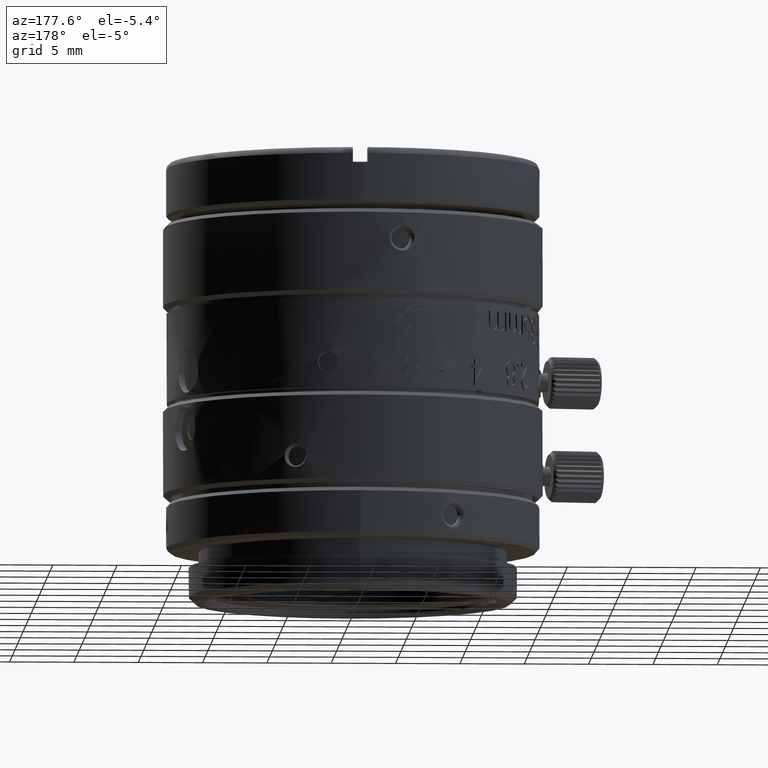
[diagram: clean part render]
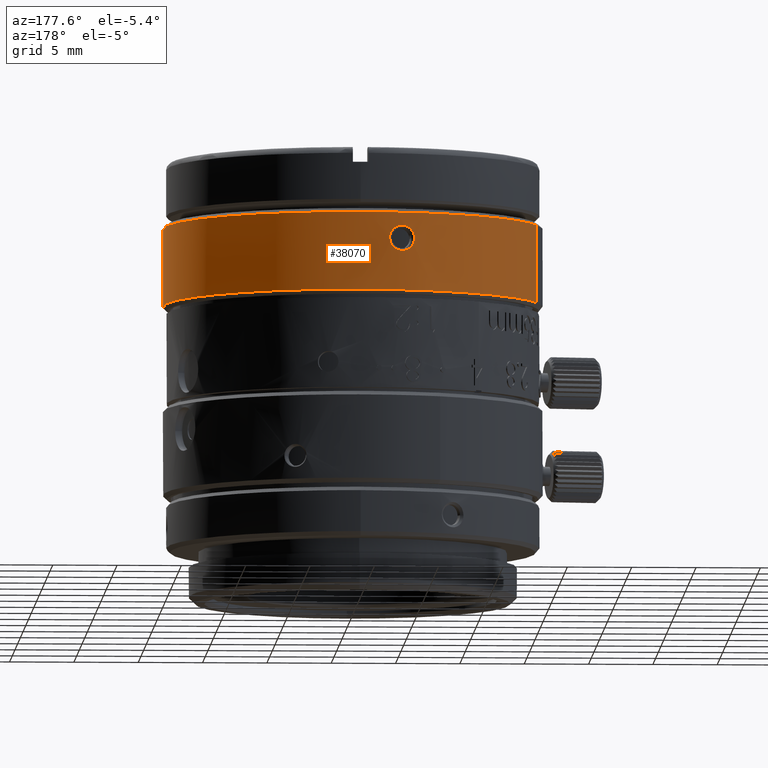
[diagram: same view with one face highlighted and labeled with its STEP entity id]
A machine part, auxiliary view. The second image highlights one B-rep face of the part: STEP entity #38070.
In plain terms, the highlighted face is a freeform B-spline surface patch.
Its self-contained STEP definition (entity closure, byte-faithful):
#114 = CARTESIAN_POINT ( 'NONE',  ( -14.08183630799999975, 4.389121345000000396, 22.93932818800000106 ) ) ;
#202 = CARTESIAN_POINT ( 'NONE',  ( -2.570197933999999851, 14.52436276200000087, 20.21917206399999856 ) ) ;
#331 = CARTESIAN_POINT ( 'NONE',  ( -3.398307082999999729, 14.35319725399999946, 21.91251660100000009 ) ) ;
#412 = CARTESIAN_POINT ( 'NONE',  ( -2.851029207999999926, 14.47184708600000036, 20.03443372599999961 ) ) ;
#543 = CARTESIAN_POINT ( 'NONE',  ( -2.709517937999999848, 14.49900683899999976, 21.76812163799999666 ) ) ;
#630 = CARTESIAN_POINT ( 'NONE',  ( -2.433643215000000026, 14.54785080399999941, 20.37832729600000192 ) ) ;
#760 = CARTESIAN_POINT ( 'NONE',  ( -2.346564987000000269, 14.56214893099999941, 21.34668329800000208 ) ) ;
#915 = CARTESIAN_POINT ( 'NONE',  ( 14.08183634890690072, -4.389121213744545003, 19.95309685991425042 ) ) ;
#973 = CARTESIAN_POINT ( 'NONE',  ( -2.836471637000000268, 14.47470708699999875, 21.83772573600000300 ) ) ;
#1048 = CARTESIAN_POINT ( 'NONE',  ( -4.144830634999999930, 14.15566703899999901, 20.59159316899999936 ) ) ;
#1252 = CARTESIAN_POINT ( 'NONE',  ( -3.302916863000000092, 14.37544805399999959, 19.95503774899999883 ) ) ;
#1317 = CARTESIAN_POINT ( 'NONE',  ( 14.14793252700000004, -4.171274130000000468, 19.97854098899999897 ) ) ;
#1449 = CARTESIAN_POINT ( 'NONE',  ( -3.866337477000000078, 14.23425774400000066, 20.18672398000000001 ) ) ;
#1513 = CARTESIAN_POINT ( 'NONE',  ( 14.27287170299999985, -3.721258654999999749, 21.64801024300000165 ) ) ;
#1649 = CARTESIAN_POINT ( 'NONE',  ( -3.935679779999999628, 14.21524044000000053, 20.25310460400000068 ) ) ;
#1715 = CARTESIAN_POINT ( 'NONE',  ( 14.26380670699999875, -3.755922484000000061, 20.19752373700000092 ) ) ;
#1837 = CARTESIAN_POINT ( 'NONE',  ( -5.303593609823979982, 32.55279394656484016, 22.93932818799985895 ) ) ;
#1867 = CARTESIAN_POINT ( 'NONE',  ( 14.08183632338500146, -4.389121295639520248, 21.92555951927500146 ) ) ;
#1911 = CARTESIAN_POINT ( 'NONE',  ( 14.33761641200000092, -3.463420029999999983, 21.21077085599999990 ) ) ;
#2116 = CARTESIAN_POINT ( 'NONE',  ( 14.32056768600000041, -3.533256376000000198, 21.38997536400000143 ) ) ;
#2324 = CARTESIAN_POINT ( 'NONE',  ( 14.32235281299999841, -3.526011865999999717, 20.50329768700000344 ) ) ;
#2514 = FACE_OUTER_BOUND ( 'NONE', #36351, .T. ) ;
#2534 = CARTESIAN_POINT ( 'NONE',  ( 14.19498609200000061, -4.008129025000000567, 21.84419192200000026 ) ) ;
#2652 = CARTESIAN_POINT ( 'NONE',  ( -3.271102501999999745, 14.38272070500000055, 21.92518291399999697 ) ) ;
#2865 = CARTESIAN_POINT ( 'NONE',  ( -3.551718284999999753, 14.31600616500000100, 21.87349688899999833 ) ) ;
#2940 = CARTESIAN_POINT ( 'NONE',  ( -2.986673268999999742, 14.44446384699999975, 19.98672393400000047 ) ) ;
#2958 = CARTESIAN_POINT ( 'NONE',  ( 14.26056952999999972, -3.768131928999999936, 21.69137245199999953 ) ) ;
#3067 = CARTESIAN_POINT ( 'NONE',  ( -4.206316112976075772, 14.13751763054776056, 20.93931568342665273 ) ) ;
#3141 = CARTESIAN_POINT ( 'NONE',  ( -2.327612605999999751, 14.56518997299999896, 20.57658971299999706 ) ) ;
#3276 = CARTESIAN_POINT ( 'NONE',  ( -4.160320102000000020, 14.15112218199999994, 21.24146309800000054 ) ) ;
#3354 = CARTESIAN_POINT ( 'NONE',  ( -2.723210993000000357, 14.49644167800000005, 20.10181903400000181 ) ) ;
#3373 = CARTESIAN_POINT ( 'NONE',  ( 14.19903232500000101, -3.993769882000000049, 21.83765505000000218 ) ) ;
#3482 = CARTESIAN_POINT ( 'NONE',  ( -4.206316437999999991, 14.13751753399999878, 20.95551474500000211 ) ) ;
#3557 = CARTESIAN_POINT ( 'NONE',  ( 4.389121342111766744, 14.08183630890022364, 16.88932818800000035 ) ) ;
#3565 = CARTESIAN_POINT ( 'NONE',  ( -2.260095890000000107, 14.57581822299999885, 20.87443584400000063 ) ) ;
#3635 = CARTESIAN_POINT ( 'NONE',  ( 14.18257095999999962, -4.051841096000000420, 20.01628975199999871 ) ) ;
#3700 = CARTESIAN_POINT ( 'NONE',  ( -2.472254137000000185, 14.54133999699999968, 21.55244142100000104 ) ) ;
#3779 = CARTESIAN_POINT ( 'NONE',  ( -2.793245449000000047, 14.48311042500000134, 20.06193569400000243 ) ) ;
#3907 = CARTESIAN_POINT ( 'NONE',  ( -2.570229852999999842, 14.52435711500000082, 21.65951424200000019 ) ) ;
#3989 = CARTESIAN_POINT ( 'NONE',  ( -4.205927945000000001, 14.13763313900000007, 20.90691683600000061 ) ) ;
#4204 = CARTESIAN_POINT ( 'NONE',  ( -3.752264213999999765, 14.26477288200000082, 20.10133357600000181 ) ) ;
#4208 = VERTEX_POINT ( 'NONE', #34985 ) ;
#4260 = ORIENTED_EDGE ( 'NONE', *, *, #37048, .T. ) ;
#4335 = CARTESIAN_POINT ( 'NONE',  ( -2.327621697000000101, 14.56518852099999961, 21.30208970400000013 ) ) ;
#4412 = CARTESIAN_POINT ( 'NONE',  ( -4.107139443000000334, 14.16664941399999833, 20.50242125899999834 ) ) ;
#4480 = CARTESIAN_POINT ( 'NONE',  ( 14.12964949299999873, -4.232702175000000011, 19.96628933400000250 ) ) ;
#4540 = CARTESIAN_POINT ( 'NONE',  ( -2.986690113000000313, 14.44446035900000069, 21.89193691699999889 ) ) ;
#4612 = CARTESIAN_POINT ( 'NONE',  ( -4.203207225999999963, 14.13844233500000058, 20.85832828300000230 ) ) ;
#4679 = CARTESIAN_POINT ( 'NONE',  ( 14.18674687100000043, -4.037194792000000199, 20.02209566499999838 ) ) ;
#4809 = CARTESIAN_POINT ( 'NONE',  ( -3.978125003000000159, 14.20341960899999911, 20.30104707700000333 ) ) ;
#4877 = CARTESIAN_POINT ( 'NONE',  ( 14.19499349300000013, -4.008102831999999616, 20.03447600799999861 ) ) ;
#5080 = CARTESIAN_POINT ( 'NONE',  ( 14.33878577800000009, -3.458585232999999981, 20.68412553900000006 ) ) ;
#5287 = CARTESIAN_POINT ( 'NONE',  ( 14.32232362800000125, -3.526130243999999969, 21.37559491700000081 ) ) ;
#5495 = CARTESIAN_POINT ( 'NONE',  ( 14.31491899799999956, -3.556074433999999673, 21.43250854599999755 ) ) ;
#5698 = CARTESIAN_POINT ( 'NONE',  ( 14.16965361799999990, -4.096787089000000215, 21.87847337100000189 ) ) ;
#5711 = ORIENTED_EDGE ( 'NONE', *, *, #37309, .F. ) ;
#6030 = CARTESIAN_POINT ( 'NONE',  ( -3.596256856000000113, 14.30488256099999944, 21.85688365300000058 ) ) ;
#6310 = CARTESIAN_POINT ( 'NONE',  ( -2.631069463000000219, 14.51344658000000010, 20.16701295300000041 ) ) ;
#6436 = CARTESIAN_POINT ( 'NONE',  ( -3.804612582999999937, 14.25090016799999937, 21.74161713799999873 ) ) ;
#6514 = CARTESIAN_POINT ( 'NONE',  ( -2.669498353000000268, 14.50642790000000026, 20.13789027700000034 ) ) ;
#6533 = CARTESIAN_POINT ( 'NONE',  ( 14.26988648100000034, -3.732691608000000105, 21.65911723700000024 ) ) ;
#6643 = CARTESIAN_POINT ( 'NONE',  ( -3.581486640000000055, 14.30858793699999865, 21.86267353599999907 ) ) ;
#6724 = CARTESIAN_POINT ( 'NONE',  ( -2.807546705000000031, 14.48034523500000148, 20.05469669000000010 ) ) ;
#6854 = CARTESIAN_POINT ( 'NONE',  ( -2.940611088000000262, 14.45391125699999968, 21.87822646300000073 ) ) ;
#7140 = CARTESIAN_POINT ( 'NONE',  ( -3.859827385865586713, 16.65292406462622310, 16.88932818800000035 ) ) ;
#7148 = CARTESIAN_POINT ( 'NONE',  ( -3.271085015999999790, 14.38272468500000123, 19.95347285200000087 ) ) ;
#7276 = CARTESIAN_POINT ( 'NONE',  ( -2.750963016000000039, 14.49120080800000032, 21.79355347999999992 ) ) ;
#7362 = CARTESIAN_POINT ( 'NONE',  ( -4.198133966000000328, 14.13994968499999949, 20.80976188200000010 ) ) ;
#7487 = CARTESIAN_POINT ( 'NONE',  ( -2.793280103999999930, 14.48310374099999898, 21.81673857399999861 ) ) ;
#7569 = CARTESIAN_POINT ( 'NONE',  ( -3.725191012000000246, 14.27187037699999905, 20.08476573799999798 ) ) ;
#7631 = VERTEX_POINT ( 'NONE', #1867 ) ;
#7638 = CARTESIAN_POINT ( 'NONE',  ( 14.10602021900000125, -4.310796029000000473, 19.95629261599999893 ) ) ;
#7696 = CARTESIAN_POINT ( 'NONE',  ( -2.321775914999999912, 14.56612122700000000, 21.28697580000000045 ) ) ;
#7770 = CARTESIAN_POINT ( 'NONE',  ( -4.155396435000000110, 14.15256905200000048, 20.62189797899999988 ) ) ;
#7966 = CARTESIAN_POINT ( 'NONE',  ( -3.967837943000000145, 14.20629731100000015, 20.28883234599999952 ) ) ;
#8034 = CARTESIAN_POINT ( 'NONE',  ( 14.33425162300000011, -3.477320887999999943, 20.62274943400000282 ) ) ;
#8169 = B_SPLINE_CURVE_WITH_KNOTS ( 'NONE', 3,
 ( #915, #10782, #23564, #36373, #7638, #20425, #33228, #4480, #30069, #1317, #14134, #39719, #20623, #3635, #4679, #4877, #17871, #30673, #24165, #33625, #31088, #8235, #27317, #1715, #17676, #36968, #37170, #20827, #23970, #24780, #11181, #18274, #2324, #21431, #27516, #15144, #39911, #8034, #30878, #5080, #27112, #40731, #11576, #14529, #8643, #11987, #30471, #40112, #14336, #24366, #40318, #27931, #8851, #11373, #21022, #33829, #37581, #36773, #1911, #8440, #33431, #21224, #14734, #14938, #34029, #5287, #2116, #34231, #5495, #18067, #27721, #17473, #40521, #30272, #11782, #24572, #37377, #1513, #6533, #34442, #2958, #35274, #38418, #25190, #19314, #21643, #18902, #31289, #9061, #3373, #2534, #13030, #28562, #31709, #5698, #15769, #18689, #15354, #38001, #28968, #16186, #12822 ),
 .UNSPECIFIED., .F., .F.,
 ( 4, 2, 2, 2, 2, 2, 2, 2, 2, 2, 2, 2, 2, 2, 2, 2, 2, 2, 2, 2, 2, 2, 2, 2, 2, 2, 2, 2, 2, 2, 2, 2, 2, 2, 2, 2, 2, 2, 2, 2, 2, 2, 2, 2, 2, 2, 2, 2, 2, 2, 4 ),
 ( 0.0000000000000000000, 0.01562499909955780177, 0.03124999819911883706, 0.04687499729867635606, 0.06249999639823739656, 0.09374999459735608442, 0.1093749936969169861, 0.1249999927964747931, 0.1406249918960356948, 0.1562499909955934740, 0.1874999891947120301, 0.2187499873938308637, 0.2499999855929494197, 0.2812499837920682810, 0.3124999819911868371, 0.3437499801903055041, 0.3593749792898631723, 0.3749999783894242267, 0.3906249774889819504, 0.4062499765885396186, 0.4374999747876582856, 0.4531249738872193400, 0.4687499729867770082, 0.4843749720863379515, 0.4999999711858989504, 0.5312499693850175619, 0.5468749684845753967, 0.5624999675841362290, 0.5781249666836940637, 0.5937499657832550071, 0.6093749648828127308, 0.6249999639823736741, 0.6406249630819312868, 0.6562499621814923412, 0.6718749612810500649, 0.6874999603806093429, 0.7031249594801687319, 0.7187499585797280099, 0.7499999567788464550, 0.7656249558784058440, 0.7812499549779651220, 0.7968749540775245110, 0.8124999531770836780, 0.8437499513762021230, 0.8593749504757615121, 0.8749999495753207901, 0.8906249486748801791, 0.9062499477744395682, 0.9374999459735582352, 0.9687499441726767913, 1.000000000000000000 ),
 .UNSPECIFIED. ) ;
#8235 = CARTESIAN_POINT ( 'NONE',  ( 14.24412843200000012, -3.829887274999999924, 20.13753157700000074 ) ) ;
#8440 = CARTESIAN_POINT ( 'NONE',  ( 14.33537753299999906, -3.472675288000000027, 21.24164703500000329 ) ) ;
#8507 = B_SPLINE_CURVE_WITH_KNOTS ( 'NONE', 3,
 ( #35671, #19711, #3565, #28954, #19093, #31892, #29380, #25382, #32099, #23079, #3141, #25586, #9461, #19500, #9665, #10294, #9873, #630, #18883, #16376, #12802, #38399, #15751, #22452, #13437, #202, #35045, #6310, #35256, #6514, #22653, #32525, #3354, #32310, #26228, #3779, #6724, #31690, #412, #16169, #26017, #16588, #38815, #25797, #2940, #41341, #17408, #36705, #10498, #14066, #33159, #26650, #26443, #30204, #7148, #1252, #23499, #17009, #20556, #39245, #19931, #11114, #16806, #13649, #40043, #14465, #27246, #17607, #20758, #26853, #30408, #7569, #4204, #14268, #33560, #1449, #32742, #23290, #36307, #1649, #20355, #7966, #4809, #29798, #17209, #39653, #11307, #10920, #4412, #36508, #36102, #32951, #1048, #7770, #23700, #35885, #33361, #13862, #39453, #7362, #10715, #4612, #23903, #3989, #27049, #30002 ),
 .UNSPECIFIED., .F., .F.,
 ( 4, 2, 2, 2, 2, 2, 2, 2, 2, 2, 2, 2, 2, 2, 2, 2, 2, 2, 2, 2, 2, 2, 2, 2, 2, 2, 2, 2, 2, 2, 2, 2, 2, 2, 2, 2, 2, 2, 2, 2, 2, 2, 2, 2, 2, 2, 2, 2, 2, 2, 2, 2, 4 ),
 ( 0.0000000000000000000, 0.03124999557057105831, 0.06249999114114199866, 0.09374998671171314024, 0.1093749844969987145, 0.1249999822822842888, 0.1406249800675698491, 0.1562499778528554373, 0.1874999734234262527, 0.2031249712087118131, 0.2187499689939973457, 0.2343749667792829339, 0.2499999645645684943, 0.2812499601351396428, 0.2968749579204252309, 0.3124999557057104860, 0.3281249534909944088, 0.3437499512762822729, 0.3593749490615669173, 0.3749999468468514507, 0.3906249446321393148, 0.4062499424174239038, 0.4218749402027085482, 0.4374999379879963013, 0.4531249357732808902, 0.4687499335585654792, 0.4999999291291346570, 0.5156249269144225211, 0.5312499246997103297, 0.5468749224849950297, 0.5624999202702795076, 0.5937499158408520161, 0.6093749136261366051, 0.6249999114114211940, 0.6406249091967091136, 0.6562499069819935915, 0.6874999025525628804, 0.7187498981231320583, 0.7343748959084199779, 0.7499998936937077865, 0.7656248914789922644, 0.7812498892642769643, 0.8124998848348493619, 0.8437498804054186508, 0.8593748781907064593, 0.8749998759759911593, 0.8906248737612756372, 0.9062498715465601151, 0.9374998671171325126, 0.9531248649024172126, 0.9687498626877018015, 0.9843748604729863905, 1.000000000000000000 ),
 .UNSPECIFIED. ) ;
#8643 = CARTESIAN_POINT ( 'NONE',  ( 14.34512324999999855, -3.432191945000000022, 20.82690741999999773 ) ) ;
#8835 = CARTESIAN_POINT ( 'NONE',  ( -11.51074855576634093, 12.63807006772822739, 16.88932818799999680 ) ) ;
#8851 = CARTESIAN_POINT ( 'NONE',  ( 14.34464715900000087, -3.434181656999999888, 21.06809887200000020 ) ) ;
#9061 = CARTESIAN_POINT ( 'NONE',  ( 14.20697852200000000, -3.965410209999999935, 21.82389124299999850 ) ) ;
#9179 = CARTESIAN_POINT ( 'NONE',  ( -4.139190907999999780, 14.15731747399999918, 21.30207310099999773 ) ) ;
#9389 = CARTESIAN_POINT ( 'NONE',  ( -4.144843376999999940, 14.15566330799999939, 21.28702845299999780 ) ) ;
#9461 = CARTESIAN_POINT ( 'NONE',  ( -2.346552360000000004, 14.56215096500000072, 20.53200095700000105 ) ) ;
#9589 = CARTESIAN_POINT ( 'NONE',  ( -3.968186437000000844, 14.20621079000000009, 21.59001532199999929 ) ) ;
#9658 = EDGE_LOOP ( 'NONE', ( #37977, #31587 ) ) ;
#9665 = CARTESIAN_POINT ( 'NONE',  ( -2.367566158999999892, 14.55874958300000088, 20.48856513700000193 ) ) ;
#9792 = CARTESIAN_POINT ( 'NONE',  ( -3.878541138000000110, 14.23095410100000002, 21.68170409300000046 ) ) ;
#9873 = CARTESIAN_POINT ( 'NONE',  ( -2.406812405000000155, 14.55232224299999899, 20.41851526800000016 ) ) ;
#10003 = CARTESIAN_POINT ( 'NONE',  ( -4.127134926000000092, 14.16083672399999926, 21.33194379499999727 ) ) ;
#10199 = CARTESIAN_POINT ( 'NONE',  ( 14.08183634890690072, -4.389121213744545003, 19.95309685991425042 ) ) ;
#10212 = CARTESIAN_POINT ( 'NONE',  ( -2.291570574000000082, 14.57090574999999966, 21.19441029200000060 ) ) ;
#10284 = CARTESIAN_POINT ( 'NONE',  ( -11.51074855576634270, 12.63807006772822739, 16.88932818800000035 ) ) ;
#10294 = CARTESIAN_POINT ( 'NONE',  ( -2.390293129999999877, 14.55504154500000169, 20.44608230100000057 ) ) ;
#10498 = CARTESIAN_POINT ( 'NONE',  ( -3.080958932000000150, 14.42464741200000056, 19.96614041700000186 ) ) ;
#10632 = CARTESIAN_POINT ( 'NONE',  ( -2.503427279999999922, 14.53600607599999961, 21.58982575499999967 ) ) ;
#10715 = CARTESIAN_POINT ( 'NONE',  ( -4.200085153999999932, 14.13937011900000051, 20.82591400300000117 ) ) ;
#10782 = CARTESIAN_POINT ( 'NONE',  ( 14.08671565100000045, -4.373466709000000563, 19.95309685700000202 ) ) ;
#10920 = CARTESIAN_POINT ( 'NONE',  ( -4.100014200000000386, 14.16871355800000032, 20.48791857200000166 ) ) ;
#11012 = CARTESIAN_POINT ( 'NONE',  ( 12.63807007008911931, 11.51074855317422596, 22.93932818800000106 ) ) ;
#11038 = VERTEX_POINT ( 'NONE', #27554 ) ;
#11040 = CARTESIAN_POINT ( 'NONE',  ( -2.971230497999999720, 14.44764802699999962, 21.88761114299999733 ) ) ;
#11114 = CARTESIAN_POINT ( 'NONE',  ( -3.460675955000000137, 14.33831386700000010, 19.97833682700000324 ) ) ;
#11181 = CARTESIAN_POINT ( 'NONE',  ( 14.31500728500000008, -3.555742557999999942, 20.44594378800000101 ) ) ;
#11307 = CARTESIAN_POINT ( 'NONE',  ( -4.077696647999999868, 14.17515887499999927, 20.44515804899999978 ) ) ;
#11373 = CARTESIAN_POINT ( 'NONE',  ( 14.34352826299999961, -3.438851950999999740, 21.10000792700000005 ) ) ;
#11576 = CARTESIAN_POINT ( 'NONE',  ( 14.34352901600000152, -3.438848813999999976, 20.77866285099999999 ) ) ;
#11782 = CARTESIAN_POINT ( 'NONE',  ( 14.29467704999999889, -3.636593865000000037, 21.55286351600000216 ) ) ;
#11968 = CARTESIAN_POINT ( 'NONE',  ( -11.51074855576634093, 12.63807006772822739, 22.93932818800000106 ) ) ;
#11987 = CARTESIAN_POINT ( 'NONE',  ( 14.34587183999999915, -3.429061639999999578, 20.85926786699999980 ) ) ;
#12174 = CARTESIAN_POINT ( 'NONE',  ( 16.65292406541788139, 3.859827382450013111, 22.93932818800000106 ) ) ;
#12304 = CARTESIAN_POINT ( 'NONE',  ( -3.752295334999999898, 14.26476469700000038, 21.77730312199999929 ) ) ;
#12336 =( BOUNDED_CURVE ( )  B_SPLINE_CURVE ( 3, ( #36697, #30196, #1837, #21147 ),
 .UNSPECIFIED., .F., .T. ) 
 B_SPLINE_CURVE_WITH_KNOTS ( ( 4, 4 ),
 ( -9.122634189624410084, -5.981041536034619632 ),
 .UNSPECIFIED. ) 
 CURVE ( )  GEOMETRIC_REPRESENTATION_ITEM ( )  RATIONAL_B_SPLINE_CURVE ( ( 1.000000000000000000, 0.3333333335299309419, 0.3333333335299309419, 1.000000000000000000 ) ) 
 REPRESENTATION_ITEM ( '' )  );
#12483 = ORIENTED_EDGE ( 'NONE', *, *, #14171, .T. ) ;
#12521 = CARTESIAN_POINT ( 'NONE',  ( -3.112564907999999964, 14.41786047399999937, 21.91725306400000051 ) ) ;
#12726 = CARTESIAN_POINT ( 'NONE',  ( -4.008057217000000172, 14.19501342899999941, 21.54025062200000207 ) ) ;
#12802 = CARTESIAN_POINT ( 'NONE',  ( -2.472224590000000166, 14.54134502000000140, 20.32625220999999982 ) ) ;
#12822 = CARTESIAN_POINT ( 'NONE',  ( 14.08183632338500146, -4.389121295639520248, 21.92555951927500146 ) ) ;
#12935 = CARTESIAN_POINT ( 'NONE',  ( -3.725221315999999838, 14.27186247200000047, 21.79387290300000046 ) ) ;
#13004 = CARTESIAN_POINT ( 'NONE',  ( 16.65292406541788139, 3.859827382450012667, 16.88932818800000035 ) ) ;
#13030 = CARTESIAN_POINT ( 'NONE',  ( 14.18674260299999901, -4.037209770000000475, 21.85656667900000016 ) ) ;
#13138 = CARTESIAN_POINT ( 'NONE',  ( -3.366717895999999932, 14.36063977699999938, 21.91727117699999994 ) ) ;
#13267 = CARTESIAN_POINT ( 'NONE',  ( 14.08183630799999975, -4.389121345000000396, 22.93932818800000106 ) ) ;
#13352 = CARTESIAN_POINT ( 'NONE',  ( -2.406834672000000008, 14.55231856299999826, 21.46017700799999872 ) ) ;
#13403 = EDGE_CURVE ( 'NONE', #16017, #11038, #40130, .T. ) ;
#13437 = CARTESIAN_POINT ( 'NONE',  ( -2.536147603999999944, 14.53033338100000016, 20.25328053400000172 ) ) ;
#13565 = CARTESIAN_POINT ( 'NONE',  ( -2.260096736000000384, 14.57581809200000045, 21.00423562299999958 ) ) ;
#13649 = CARTESIAN_POINT ( 'NONE',  ( -3.536690708000000072, 14.31972628900000011, 20.00011646400000487 ) ) ;
#13721 =( BOUNDED_SURFACE ( )  B_SPLINE_SURFACE ( 1, 3, ( 
 ( #37561, #21832, #40928, #31480, #33459, #8835, #15125 ),
 ( #20651, #12174, #11012, #21620, #41131, #11968, #27703 ) ),
 .UNSPECIFIED., .F., .F., .T. ) 
 B_SPLINE_SURFACE_WITH_KNOTS ( ( 2, 2 ),
 ( 4, 3, 4 ),
 ( 0.0000000000000000000, 1.000000000000000000 ),
 ( 0.0000000000000000000, 0.5000000000000000000, 1.000000000000000000 ),
 .UNSPECIFIED. ) 
 GEOMETRIC_REPRESENTATION_ITEM ( )  RATIONAL_B_SPLINE_SURFACE ( (
 ( 1.000000000000000000, 0.8047378540760217192, 0.8047378540760217192, 1.000000000000000000, 0.8047378540760217192, 0.8047378540760217192, 1.000000000000000000),
 ( 1.000000000000000000, 0.8047378540760217192, 0.8047378540760217192, 1.000000000000000000, 0.8047378540760217192, 0.8047378540760217192, 1.000000000000000000) ) ) 
 REPRESENTATION_ITEM ( '' )  SURFACE ( )  );
#13783 = CARTESIAN_POINT ( 'NONE',  ( -2.367582400999999948, 14.55874694200000086, 21.39012286999999901 ) ) ;
#13862 = CARTESIAN_POINT ( 'NONE',  ( -4.190782813000000218, 14.14213030800000048, 20.76182190200000122 ) ) ;
#14043 = VERTEX_POINT ( 'NONE', #13267 ) ;
#14066 = CARTESIAN_POINT ( 'NONE',  ( -3.112543366000000145, 14.41786512200000026, 19.96140620700000312 ) ) ;
#14134 = CARTESIAN_POINT ( 'NONE',  ( 14.15682168600000246, -4.140998415000000321, 19.98637722400000172 ) ) ;
#14171 = EDGE_CURVE ( 'NONE', #14043, #7631, #15622, .T. ) ;
#14188 = CARTESIAN_POINT ( 'NONE',  ( -2.764970990999999767, 14.48853488600000183, 21.80152711299999879 ) ) ;
#14268 = CARTESIAN_POINT ( 'NONE',  ( -3.804579739999999877, 14.25090893399999992, 20.13701529000000079 ) ) ;
#14336 = CARTESIAN_POINT ( 'NONE',  ( 14.34660953900000102, -3.425973536999999958, 20.92378371599999909 ) ) ;
#14465 = CARTESIAN_POINT ( 'NONE',  ( -3.581456160000000111, 14.30859556600000104, 20.01597118999999836 ) ) ;
#14529 = CARTESIAN_POINT ( 'NONE',  ( 14.34465241000000013, -3.434159732999999992, 20.81071437800000012 ) ) ;
#14734 = CARTESIAN_POINT ( 'NONE',  ( 14.33018098900000048, -3.494059491000000239, 21.30218422899999808 ) ) ;
#14938 = CARTESIAN_POINT ( 'NONE',  ( 14.32722114200000085, -3.506176442000000115, 21.33184981000000136 ) ) ;
#15125 = CARTESIAN_POINT ( 'NONE',  ( -14.08183630980044754, 4.389121339223533980, 16.88932818800000035 ) ) ;
#15144 = CARTESIAN_POINT ( 'NONE',  ( 14.33026972600000093, -3.493695579000000162, 20.57740258500000152 ) ) ;
#15354 = CARTESIAN_POINT ( 'NONE',  ( 14.12943307400000137, -4.233513795999999552, 21.91290035300000127 ) ) ;
#15469 = CARTESIAN_POINT ( 'NONE',  ( -3.683227451999999680, 14.28273596499999876, 21.81676787900000036 ) ) ;
#15622 = B_SPLINE_CURVE_WITH_KNOTS ( 'NONE', 1,
 ( #25113, #15697 ),
 .UNSPECIFIED., .F., .F.,
 ( 2, 2 ),
 ( -1.000000000000000000, 0.0000000000000000000 ),
 .UNSPECIFIED. ) ;
#15681 = CARTESIAN_POINT ( 'NONE',  ( -3.207553733999999768, 14.39705384200000005, 21.92554269500000075 ) ) ;
#15697 = CARTESIAN_POINT ( 'NONE',  ( 14.08183632338500146, -4.389121295639520248, 21.92555951927500146 ) ) ;
#15751 = CARTESIAN_POINT ( 'NONE',  ( -2.503396904000000145, 14.53601130800000085, 20.28886527800000295 ) ) ;
#15769 = CARTESIAN_POINT ( 'NONE',  ( 14.15653637499999995, -4.141975089999999859, 21.89255471599999936 ) ) ;
#15881 = CARTESIAN_POINT ( 'NONE',  ( -4.173953755000000321, 14.14710924400000103, 21.19536045499999943 ) ) ;
#16017 = VERTEX_POINT ( 'NONE', #10199 ) ;
#16088 = CARTESIAN_POINT ( 'NONE',  ( -4.100030416000000066, 14.16870886500000104, 21.39070544100000149 ) ) ;
#16169 = CARTESIAN_POINT ( 'NONE',  ( -2.880498196000000011, 14.46601036100000037, 20.02213411899999684 ) ) ;
#16186 = CARTESIAN_POINT ( 'NONE',  ( 14.09165180799999995, -4.357629789000000642, 21.92555951399999969 ) ) ;
#16297 = CARTESIAN_POINT ( 'NONE',  ( -3.536720137000000097, 14.31971902200000102, 21.87853032800000364 ) ) ;
#16376 = CARTESIAN_POINT ( 'NONE',  ( -2.462209076000000163, 14.54304377299999906, 20.33910098799999844 ) ) ;
#16507 = CARTESIAN_POINT ( 'NONE',  ( -3.065192713000000069, 14.42800582499999962, 21.90975360800000260 ) ) ;
#16588 = CARTESIAN_POINT ( 'NONE',  ( -2.925421506999999810, 14.45699290399999981, 20.00549810100000059 ) ) ;
#16719 = CARTESIAN_POINT ( 'NONE',  ( -2.536178795999999735, 14.53032793699999914, 21.62540810899999855 ) ) ;
#16806 = CARTESIAN_POINT ( 'NONE',  ( -3.491358176000000313, 14.33087180200000077, 19.98614747099999889 ) ) ;
#16933 = CARTESIAN_POINT ( 'NONE',  ( -2.283738054999999711, 14.57213370900000093, 21.16314989500000010 ) ) ;
#17009 = CARTESIAN_POINT ( 'NONE',  ( -3.350747509000000068, 14.36437467800000078, 19.95938979499999988 ) ) ;
#17135 = CARTESIAN_POINT ( 'NONE',  ( -2.433668621000000254, 14.54784655500000135, 21.50036585699999847 ) ) ;
#17209 = CARTESIAN_POINT ( 'NONE',  ( -4.026701821000000514, 14.18973221200000090, 20.36416276699999983 ) ) ;
#17291 = VERTEX_POINT ( 'NONE', #22841 ) ;
#17408 = CARTESIAN_POINT ( 'NONE',  ( -3.033668084999999959, 14.43466723399999907, 19.97523682499999964 ) ) ;
#17473 = CARTESIAN_POINT ( 'NONE',  ( 14.30423519200000193, -3.598810745000000200, 21.50108123500000090 ) ) ;
#17607 = CARTESIAN_POINT ( 'NONE',  ( -3.625537800000000033, 14.29748943499999925, 20.03410528899999576 ) ) ;
#17676 = CARTESIAN_POINT ( 'NONE',  ( 14.26997016699999854, -3.732424978999999698, 20.21924212100000062 ) ) ;
#17871 = CARTESIAN_POINT ( 'NONE',  ( 14.19906203600000083, -3.993664905999999792, 20.04104668700000147 ) ) ;
#18067 = CARTESIAN_POINT ( 'NONE',  ( 14.31083048800000057, -3.572492487999999966, 21.46034491800000055 ) ) ;
#18274 = CARTESIAN_POINT ( 'NONE',  ( 14.32057837199999994, -3.533213166999999988, 20.48876207099999647 ) ) ;
#18603 = CARTESIAN_POINT ( 'NONE',  ( -4.181575306000000047, 14.14485662799999943, 21.16419540999999782 ) ) ;
#18689 = CARTESIAN_POINT ( 'NONE',  ( 14.14761695800000041, -4.172343775999999949, 21.90036991399999877 ) ) ;
#18807 = CARTESIAN_POINT ( 'NONE',  ( -3.414004049999999957, 14.34947153600000114, 21.90975029899999882 ) ) ;
#18883 = CARTESIAN_POINT ( 'NONE',  ( -2.442938566999999672, 14.54629321800000064, 20.36511412200000137 ) ) ;
#18894 = ORIENTED_EDGE ( 'NONE', *, *, #22260, .F. ) ;
#18902 = CARTESIAN_POINT ( 'NONE',  ( 14.22236472300000010, -3.909944325000000109, 21.79395408899999964 ) ) ;
#19012 = CARTESIAN_POINT ( 'NONE',  ( -4.190787936000000435, 14.14212878999999923, 21.11680548100000010 ) ) ;
#19093 = CARTESIAN_POINT ( 'NONE',  ( -2.271173185999999955, 14.57409732500000032, 20.77856746100000152 ) ) ;
#19314 = CARTESIAN_POINT ( 'NONE',  ( 14.24038552799999913, -3.843709762000000030, 21.75060412800000265 ) ) ;
#19423 = CARTESIAN_POINT ( 'NONE',  ( -3.640098626999999976, 14.29378898999999947, 21.83798652100000126 ) ) ;
#19500 = CARTESIAN_POINT ( 'NONE',  ( -2.360332176000000004, 14.55992378799999898, 20.50291620299999806 ) ) ;
#19603 = VERTEX_POINT ( 'NONE', #26773 ) ;
#19631 = CARTESIAN_POINT ( 'NONE',  ( -2.310783713000000184, 14.56786908200000141, 21.25631426700000048 ) ) ;
#19711 = CARTESIAN_POINT ( 'NONE',  ( -2.258481063999999705, 14.57606816999999921, 20.90674081899999948 ) ) ;
#19931 = CARTESIAN_POINT ( 'NONE',  ( -3.413987986999999613, 14.34947535100000060, 19.96890320700000032 ) ) ;
#20010 = B_SPLINE_CURVE_WITH_KNOTS ( 'NONE', 3,
 ( #3067, #3482, #31818, #32021, #22375, #22575, #22781, #35175, #19012, #18603, #15881, #3276, #41469, #9389, #9179, #10003, #38118, #34971, #16088, #31408, #38527, #28874, #12726, #9589, #34769, #35591, #9792, #25511, #6436, #12304, #12935, #15469, #25718, #19423, #35385, #6030, #6643, #2865, #16297, #41062, #29086, #18807, #331, #13138, #25932, #31611, #38738, #2652, #28258, #15681, #28469, #41268, #12521, #25306, #16507, #36433, #20058, #4540, #11040, #6854, #36020, #32447, #26149, #32656, #973, #26572, #7487, #14188, #7276, #23829, #543, #26973, #39373, #29508, #23623, #39773, #3907, #16719, #29300, #10632, #39162, #3700, #23421, #26777, #17135, #13352, #38946, #13783, #36224, #760, #23207, #4335, #7696, #19631, #20482, #10212, #16933, #32869, #22997, #13565, #26362, #29719 ),
 .UNSPECIFIED., .F., .F.,
 ( 4, 2, 2, 2, 2, 2, 2, 2, 2, 2, 2, 2, 2, 2, 2, 2, 2, 2, 2, 2, 2, 2, 2, 2, 2, 2, 2, 2, 2, 2, 2, 2, 2, 2, 2, 2, 2, 2, 2, 2, 2, 2, 2, 2, 2, 2, 2, 2, 2, 2, 4 ),
 ( 0.0000000000000000000, 0.01562499999999897131, 0.03125000000000131839, 0.04687500000000043021, 0.06249999999999954203, 0.09374999999999776568, 0.1093750000000001110, 0.1249999999999990841, 0.1406250000000014433, 0.1562500000000005551, 0.1874999999999987788, 0.2187500000000002220, 0.2500000000000016653, 0.2812499999999997780, 0.3125000000000011102, 0.3437499999999993339, 0.3593750000000014988, 0.3750000000000008882, 0.3906249999999997224, 0.4062499999999991118, 0.4375000000000004441, 0.4531249999999992784, 0.4687500000000017764, 0.4843750000000008882, 0.5000000000000000000, 0.5312500000000015543, 0.5468750000000004441, 0.5624999999999995559, 0.5781250000000017764, 0.5937500000000011102, 0.6093750000000000000, 0.6249999999999993339, 0.6406250000000015543, 0.6562500000000006661, 0.6718749999999995559, 0.6875000000000019984, 0.7031250000000011102, 0.7187500000000002220, 0.7500000000000017764, 0.7656250000000006661, 0.7812500000000000000, 0.7968750000000019984, 0.8125000000000013323, 0.8437500000000024425, 0.8593750000000017764, 0.8750000000000006661, 0.8906250000000000000, 0.9062500000000022204, 0.9375000000000002220, 0.9687500000000017764, 1.000000000000000000 ),
 .UNSPECIFIED. ) ;
#20058 = CARTESIAN_POINT ( 'NONE',  ( -3.017885288999999638, 14.43797503499999912, 21.89983761599999923 ) ) ;
#20355 = CARTESIAN_POINT ( 'NONE',  ( -3.946621235999999922, 14.21220609600000095, 20.26486717899999945 ) ) ;
#20425 = CARTESIAN_POINT ( 'NONE',  ( 14.11557307900000069, -4.279411867000001202, 19.95950167000000164 ) ) ;
#20482 = CARTESIAN_POINT ( 'NONE',  ( -2.305675282999999798, 14.56867819800000063, 21.24087045299999943 ) ) ;
#20556 = CARTESIAN_POINT ( 'NONE',  ( -3.366711892000000095, 14.36064117900000170, 19.96138448299999979 ) ) ;
#20623 = CARTESIAN_POINT ( 'NONE',  ( 14.17411277000000069, -4.081330967999999615, 20.00543633300000224 ) ) ;
#20651 = CARTESIAN_POINT ( 'NONE',  ( 14.08183630799999975, -4.389121345000000396, 22.93932818800000106 ) ) ;
#20758 = CARTESIAN_POINT ( 'NONE',  ( -3.640069857000000297, 14.29379631800000006, 20.04065655500000176 ) ) ;
#20827 = CARTESIAN_POINT ( 'NONE',  ( 14.29739932200000041, -3.625920633999999865, 20.33907843899999790 ) ) ;
#21022 = CARTESIAN_POINT ( 'NONE',  ( 14.34287411400000067, -3.441579926999999817, 21.11594729099999768 ) ) ;
#21147 = CARTESIAN_POINT ( 'NONE',  ( -14.08183630799999975, 4.389121345000000396, 22.93932818800000106 ) ) ;
#21224 = CARTESIAN_POINT ( 'NONE',  ( 14.33157005000000161, -3.488356368999999901, 21.28720098099999802 ) ) ;
#21431 = CARTESIAN_POINT ( 'NONE',  ( 14.32571745300000110, -3.512316769999999977, 20.53272966700000168 ) ) ;
#21620 = CARTESIAN_POINT ( 'NONE',  ( 4.389121342111766744, 14.08183630890022364, 22.93932818800000106 ) ) ;
#21643 = CARTESIAN_POINT ( 'NONE',  ( 14.22973926900000130, -3.883008637000000096, 21.77743908799999772 ) ) ;
#21832 = CARTESIAN_POINT ( 'NONE',  ( 16.65292406541788139, 3.859827382450013111, 16.88932818799999680 ) ) ;
#22260 = EDGE_CURVE ( 'NONE', #16017, #7631, #8169, .T. ) ;
#22375 = CARTESIAN_POINT ( 'NONE',  ( -4.203209118000000188, 14.13844177200000019, 21.02030491200000029 ) ) ;
#22452 = CARTESIAN_POINT ( 'NONE',  ( -2.525055984999999836, 14.53226455399999928, 20.26494380899999825 ) ) ;
#22575 = CARTESIAN_POINT ( 'NONE',  ( -4.200087465999999381, 14.13936943200000051, 21.05272190400000198 ) ) ;
#22653 = CARTESIAN_POINT ( 'NONE',  ( -2.682660327999999872, 14.50400010300000098, 20.12857323999999792 ) ) ;
#22781 = CARTESIAN_POINT ( 'NONE',  ( -4.198137074999999996, 14.13994876200000128, 21.06887004400000052 ) ) ;
#22841 = CARTESIAN_POINT ( 'NONE',  ( -4.206316112976075772, 14.13751763054776056, 20.93931568342665273 ) ) ;
#22997 = CARTESIAN_POINT ( 'NONE',  ( -2.266444755999999838, 14.57483236600000076, 21.06833331099999640 ) ) ;
#23016 = ORIENTED_EDGE ( 'NONE', *, *, #26912, .T. ) ;
#23079 = CARTESIAN_POINT ( 'NONE',  ( -2.321768094000000282, 14.56612247300000007, 20.59170144599999830 ) ) ;
#23207 = CARTESIAN_POINT ( 'NONE',  ( -2.340017926999999887, 14.56320210300000006, 21.33194814000000150 ) ) ;
#23290 = CARTESIAN_POINT ( 'NONE',  ( -3.901702111999999723, 14.22460431900000088, 20.21893006099999823 ) ) ;
#23421 = CARTESIAN_POINT ( 'NONE',  ( -2.462237460999999961, 14.54303896800000118, 21.53959244300000009 ) ) ;
#23499 = CARTESIAN_POINT ( 'NONE',  ( -3.318844204999999992, 14.37177931600000136, 19.95621794599999888 ) ) ;
#23564 = CARTESIAN_POINT ( 'NONE',  ( 14.09156870299999831, -4.357804532000000286, 19.95349573599999715 ) ) ;
#23623 = CARTESIAN_POINT ( 'NONE',  ( -2.631102331000000127, 14.51344062200000096, 21.71166960899999765 ) ) ;
#23700 = CARTESIAN_POINT ( 'NONE',  ( -4.160309203000000622, 14.15112538700000044, 20.63715844700000090 ) ) ;
#23829 = CARTESIAN_POINT ( 'NONE',  ( -2.723244860000000322, 14.49643531699999954, 21.77685850899999664 ) ) ;
#23903 = CARTESIAN_POINT ( 'NONE',  ( -4.204373177000000794, 14.13809558799999877, 20.87451875300000026 ) ) ;
#23970 = CARTESIAN_POINT ( 'NONE',  ( 14.30214767500000050, -3.607131673999999677, 20.36488407399999900 ) ) ;
#24165 = CARTESIAN_POINT ( 'NONE',  ( 14.21104633999999933, -3.950806561000000272, 20.06230648500000058 ) ) ;
#24366 = CARTESIAN_POINT ( 'NONE',  ( 14.34660331699999958, -3.425999613000000110, 20.97204201099999921 ) ) ;
#24572 = CARTESIAN_POINT ( 'NONE',  ( 14.28701005299999949, -3.666643029000000276, 21.59011458200000177 ) ) ;
#24711 =( BOUNDED_CURVE ( )  B_SPLINE_CURVE ( 3, ( #35877, #13004, #32301, #3557, #7140, #10284, #39444 ),
 .UNSPECIFIED., .F., .T. ) 
 B_SPLINE_CURVE_WITH_KNOTS ( ( 4, 3, 4 ),
 ( -9.122634189624410084, -7.551837862829515302, -5.981041536034619632 ),
 .UNSPECIFIED. ) 
 CURVE ( )  GEOMETRIC_REPRESENTATION_ITEM ( )  RATIONAL_B_SPLINE_CURVE ( ( 1.000000000000000000, 0.8047378540760217192, 0.8047378540760217192, 1.000000000000000000, 0.8047378540760217192, 0.8047378540760217192, 1.000000000000000000 ) ) 
 REPRESENTATION_ITEM ( '' )  );
#24780 = CARTESIAN_POINT ( 'NONE',  ( 14.31095149099999908, -3.572043496000000040, 20.41831280099999901 ) ) ;
#25113 = CARTESIAN_POINT ( 'NONE',  ( 14.08183630799999975, -4.389121345000000396, 22.93932818800000106 ) ) ;
#25190 = CARTESIAN_POINT ( 'NONE',  ( 14.24386865399999991, -3.830780466000000217, 21.74130303200000114 ) ) ;
#25306 = CARTESIAN_POINT ( 'NONE',  ( -3.080977084000000144, 14.42464353699999968, 21.91251901500000088 ) ) ;
#25382 = CARTESIAN_POINT ( 'NONE',  ( -2.305668315999999773, 14.56867929999999944, 20.63780748799999998 ) ) ;
#25511 = CARTESIAN_POINT ( 'NONE',  ( -3.829862068000000175, 14.24413185200000065, 21.72249997299999791 ) ) ;
#25517 = VERTEX_POINT ( 'NONE', #114 ) ;
#25586 = CARTESIAN_POINT ( 'NONE',  ( -2.340006497000000074, 14.56320393899999921, 20.54673462899999947 ) ) ;
#25718 = CARTESIAN_POINT ( 'NONE',  ( -3.668962260999999891, 14.28640745699999925, 21.82408628499999992 ) ) ;
#25797 = CARTESIAN_POINT ( 'NONE',  ( -2.971212122999999927, 14.44765180900000168, 19.99105049499999964 ) ) ;
#25932 = CARTESIAN_POINT ( 'NONE',  ( -3.350747868999999657, 14.36437458999999883, 21.91926648900000174 ) ) ;
#26017 = CARTESIAN_POINT ( 'NONE',  ( -2.895376557999999712, 14.46304011600000194, 20.01634648899999647 ) ) ;
#26149 = CARTESIAN_POINT ( 'NONE',  ( -2.880528060000000057, 14.46600441300000028, 21.85653412900000347 ) ) ;
#26228 = CARTESIAN_POINT ( 'NONE',  ( -2.764936118000000054, 14.48854154100000002, 20.07714873400000144 ) ) ;
#26362 = CARTESIAN_POINT ( 'NONE',  ( -2.258481063000000066, 14.57606816999999921, 20.97191555800000273 ) ) ;
#26443 = CARTESIAN_POINT ( 'NONE',  ( -3.207529886000000108, 14.39705916199999969, 19.95311438500000278 ) ) ;
#26565 = CARTESIAN_POINT ( 'NONE',  ( -14.08183630799999975, 4.389121345000000396, 22.93932818800000106 ) ) ;
#26572 = CARTESIAN_POINT ( 'NONE',  ( -2.807581000999999965, 14.48033858500000015, 21.82397668099999777 ) ) ;
#26650 = CARTESIAN_POINT ( 'NONE',  ( -3.175821448999999852, 14.40408647900000183, 19.95470218099999826 ) ) ;
#26773 = CARTESIAN_POINT ( 'NONE',  ( -14.08183630870315817, 4.389121342743995235, 16.88932818800000035 ) ) ;
#26777 = CARTESIAN_POINT ( 'NONE',  ( -2.442965104000000220, 14.54628876199999965, 21.51357933199999906 ) ) ;
#26853 = CARTESIAN_POINT ( 'NONE',  ( -3.668936276000000163, 14.28641413099999902, 20.05455702400000106 ) ) ;
#26912 = EDGE_CURVE ( 'NONE', #19603, #25517, #31688, .T. ) ;
#26945 = FACE_BOUND ( 'NONE', #9658, .T. ) ;
#26973 = CARTESIAN_POINT ( 'NONE',  ( -2.682693812000000122, 14.50399391000000016, 21.75010642199999822 ) ) ;
#26984 = CARTESIAN_POINT ( 'NONE',  ( 14.08183634890690072, -4.389121213744545003, 19.95309685991425042 ) ) ;
#27049 = CARTESIAN_POINT ( 'NONE',  ( -4.206316028999999901, 14.13751765600000176, 20.92311603500000317 ) ) ;
#27112 = CARTESIAN_POINT ( 'NONE',  ( 14.34063997799999868, -3.450881883000000094, 20.71531213300000118 ) ) ;
#27246 = CARTESIAN_POINT ( 'NONE',  ( -3.596226507999999988, 14.30489019100000192, 20.02176052800000150 ) ) ;
#27317 = CARTESIAN_POINT ( 'NONE',  ( 14.25088666699999962, -3.804650364000000007, 20.15667147599999964 ) ) ;
#27516 = CARTESIAN_POINT ( 'NONE',  ( 14.32729821500000078, -3.505861529000000143, 20.54754021799999819 ) ) ;
#27554 = CARTESIAN_POINT ( 'NONE',  ( 14.08183630870315817, -4.389121342743995235, 16.88932818800000035 ) ) ;
#27703 = CARTESIAN_POINT ( 'NONE',  ( -14.08183630980044754, 4.389121339223533980, 22.93932818800000106 ) ) ;
#27721 = CARTESIAN_POINT ( 'NONE',  ( 14.30868217299999934, -3.581088966000000262, 21.47413710200000025 ) ) ;
#27931 = CARTESIAN_POINT ( 'NONE',  ( 14.34511234100000010, -3.432237525999999761, 21.05212222400000144 ) ) ;
#28258 = CARTESIAN_POINT ( 'NONE',  ( -3.255204164000000233, 14.38632722100000016, 21.92556772900000084 ) ) ;
#28469 = CARTESIAN_POINT ( 'NONE',  ( -3.175846096999999979, 14.40408104800000011, 21.92395587699999737 ) ) ;
#28562 = CARTESIAN_POINT ( 'NONE',  ( 14.18254807100000114, -4.051921865000000622, 21.86240099299999784 ) ) ;
#28739 = ORIENTED_EDGE ( 'NONE', *, *, #13403, .T. ) ;
#28874 = CARTESIAN_POINT ( 'NONE',  ( -4.026726063999999994, 14.18972532999999991, 21.51445887900000287 ) ) ;
#28954 = CARTESIAN_POINT ( 'NONE',  ( -2.266441727999999767, 14.57483283700000065, 20.81034709400000082 ) ) ;
#28968 = CARTESIAN_POINT ( 'NONE',  ( 14.10127505900000067, -4.326383455000001099, 21.92394930799999742 ) ) ;
#29086 = CARTESIAN_POINT ( 'NONE',  ( -3.460697859000000154, 14.33830857999999964, 21.90031437400000058 ) ) ;
#29300 = CARTESIAN_POINT ( 'NONE',  ( -2.525086917999999958, 14.53225917900000042, 21.61374562300000335 ) ) ;
#29380 = CARTESIAN_POINT ( 'NONE',  ( -2.291563221999999733, 14.57090690600000116, 20.68427305200000177 ) ) ;
#29508 = CARTESIAN_POINT ( 'NONE',  ( -2.643739272000000362, 14.51114449500000170, 21.72157366999999795 ) ) ;
#29719 = CARTESIAN_POINT ( 'NONE',  ( -2.258481063166509983, 14.57606816982622000, 20.93932823131699550 ) ) ;
#29798 = CARTESIAN_POINT ( 'NONE',  ( -4.008031221000000421, 14.19502077299999954, 20.33837090200000119 ) ) ;
#30002 = CARTESIAN_POINT ( 'NONE',  ( -4.206316112976075772, 14.13751763054776056, 20.93931568342665273 ) ) ;
#30069 = CARTESIAN_POINT ( 'NONE',  ( 14.13426400400000027, -4.217266546000000282, 19.96906734299999897 ) ) ;
#30196 = CARTESIAN_POINT ( 'NONE',  ( 22.86007898855307019, 23.77455125849462547, 22.93932818800000106 ) ) ;
#30204 = CARTESIAN_POINT ( 'NONE',  ( -3.255184689999999659, 14.38633162900000073, 19.95308831299999852 ) ) ;
#30264 = EDGE_CURVE ( 'NONE', #17291, #4208, #20010, .T. ) ;
#30272 = CARTESIAN_POINT ( 'NONE',  ( 14.29714903399999848, -3.626861509999999900, 21.54018436300000161 ) ) ;
#30408 = CARTESIAN_POINT ( 'NONE',  ( -3.683199850999999914, 14.28274308200000142, 20.06187406199999756 ) ) ;
#30471 = CARTESIAN_POINT ( 'NONE',  ( 14.34615007900000094, -3.427897102000000196, 20.87541517999999741 ) ) ;
#30673 = CARTESIAN_POINT ( 'NONE',  ( 14.20710330500000040, -3.964963781999999437, 20.05498749599999897 ) ) ;
#30878 = CARTESIAN_POINT ( 'NONE',  ( 14.33545412800000030, -3.472359024999999821, 20.63801150899999826 ) ) ;
#31088 = CARTESIAN_POINT ( 'NONE',  ( 14.22999060400000104, -3.882086860999999889, 20.10180726599999801 ) ) ;
#31289 = CARTESIAN_POINT ( 'NONE',  ( 14.21087847600000131, -3.951409697000000776, 21.81666427900000116 ) ) ;
#31408 = CARTESIAN_POINT ( 'NONE',  ( -4.077715573000000759, 14.17515342899999986, 21.43346463499999999 ) ) ;
#31480 = CARTESIAN_POINT ( 'NONE',  ( 4.389121342111766744, 14.08183630890022364, 16.88932818800000035 ) ) ;
#31587 = ORIENTED_EDGE ( 'NONE', *, *, #30264, .F. ) ;
#31611 = CARTESIAN_POINT ( 'NONE',  ( -3.318855334999999851, 14.37177673700000113, 21.92243738099999817 ) ) ;
#31688 = B_SPLINE_CURVE_WITH_KNOTS ( 'NONE', 1,
 ( #32435, #26565 ),
 .UNSPECIFIED., .F., .F.,
 ( 2, 2 ),
 ( -1.000000000000000000, 0.0000000000000000000 ),
 .UNSPECIFIED. ) ;
#31690 = CARTESIAN_POINT ( 'NONE',  ( -2.836438581999999986, 14.47471356500000006, 20.04094570099999828 ) ) ;
#31709 = CARTESIAN_POINT ( 'NONE',  ( 14.17399138999999941, -4.081753185999999367, 21.87337071399999644 ) ) ;
#31818 = CARTESIAN_POINT ( 'NONE',  ( -4.205928763000000181, 14.13763289600000128, 20.97171425699999858 ) ) ;
#31892 = CARTESIAN_POINT ( 'NONE',  ( -2.283731599999999862, 14.57213471999999932, 20.71553425599999798 ) ) ;
#32021 = CARTESIAN_POINT ( 'NONE',  ( -4.204374725000000090, 14.13809512699999971, 21.00411359599999983 ) ) ;
#32099 = CARTESIAN_POINT ( 'NONE',  ( -2.310777837000000279, 14.56787001399999859, 20.62235944900000106 ) ) ;
#32301 = CARTESIAN_POINT ( 'NONE',  ( 12.63807007008911576, 11.51074855317422596, 16.88932818800000035 ) ) ;
#32310 = CARTESIAN_POINT ( 'NONE',  ( -2.750928179999999834, 14.49120742100000037, 20.08512311499999825 ) ) ;
#32435 = CARTESIAN_POINT ( 'NONE',  ( -14.08183630870315817, 4.389121342743995235, 16.88932818800000035 ) ) ;
#32447 = CARTESIAN_POINT ( 'NONE',  ( -2.895404993999999732, 14.46303442199999978, 21.86232064799999719 ) ) ;
#32525 = CARTESIAN_POINT ( 'NONE',  ( -2.709484253999999925, 14.49901313400000014, 20.11055656299999939 ) ) ;
#32656 = CARTESIAN_POINT ( 'NONE',  ( -2.851061382000000144, 14.47184074600000159, 21.84423667200000096 ) ) ;
#32742 = CARTESIAN_POINT ( 'NONE',  ( -3.878279297999999820, 14.23100829500000053, 20.19724258700000163 ) ) ;
#32869 = CARTESIAN_POINT ( 'NONE',  ( -2.271177557000000125, 14.57409664400000082, 21.10011547400000254 ) ) ;
#32951 = CARTESIAN_POINT ( 'NONE',  ( -4.139177636000000327, 14.15732135500000055, 20.57654881800000268 ) ) ;
#33096 = CARTESIAN_POINT ( 'NONE',  ( 14.08183630870315817, -4.389121342743995235, 16.88932818800000035 ) ) ;
#33159 = CARTESIAN_POINT ( 'NONE',  ( -3.128351297999999669, 14.41444346699999990, 19.95943574100000006 ) ) ;
#33228 = CARTESIAN_POINT ( 'NONE',  ( 14.12031017700000035, -4.263754655999999699, 19.96150851099999812 ) ) ;
#33361 = CARTESIAN_POINT ( 'NONE',  ( -4.181568051000000175, 14.14485877399999936, 20.71442893200000057 ) ) ;
#33431 = CARTESIAN_POINT ( 'NONE',  ( 14.33416832200000002, -3.477664272999999806, 21.25693238199999868 ) ) ;
#33459 = CARTESIAN_POINT ( 'NONE',  ( -3.859827385865586713, 16.65292406462622310, 16.88932818799999680 ) ) ;
#33560 = CARTESIAN_POINT ( 'NONE',  ( -3.829828664999999965, 14.24414083499999961, 20.15613027299999871 ) ) ;
#33625 = CARTESIAN_POINT ( 'NONE',  ( 14.22260820800000047, -3.909059430000000113, 20.08521995099999913 ) ) ;
#33829 = CARTESIAN_POINT ( 'NONE',  ( 14.34137451099999971, -3.447823585999999718, 21.14775319499999995 ) ) ;
#34029 = CARTESIAN_POINT ( 'NONE',  ( 14.32565035800000075, -3.512590272000000180, 21.34653214200000093 ) ) ;
#34231 = CARTESIAN_POINT ( 'NONE',  ( 14.31686557699999973, -3.548227656999999979, 21.41843120000000056 ) ) ;
#34442 = CARTESIAN_POINT ( 'NONE',  ( 14.26373490600000160, -3.756130100000000027, 21.68080004299999786 ) ) ;
#34769 = CARTESIAN_POINT ( 'NONE',  ( -3.946968191999999487, 14.21212463100000001, 21.61400558599999755 ) ) ;
#34971 = CARTESIAN_POINT ( 'NONE',  ( -4.107154573000000752, 14.16664502799999958, 21.37620367999999971 ) ) ;
#34985 = CARTESIAN_POINT ( 'NONE',  ( -2.258481063166509983, 14.57606816982622000, 20.93932823131699550 ) ) ;
#35045 = CARTESIAN_POINT ( 'NONE',  ( -2.593930478999999956, 14.52014661800000006, 20.19760635500000134 ) ) ;
#35175 = CARTESIAN_POINT ( 'NONE',  ( -4.193488813000000093, 14.14132799400000096, 21.10089606400000051 ) ) ;
#35256 = CARTESIAN_POINT ( 'NONE',  ( -2.643706240999999846, 14.51115051299999870, 20.15710815699999969 ) ) ;
#35274 = CARTESIAN_POINT ( 'NONE',  ( 14.25404645900000133, -3.792732769000000115, 21.71198972000000182 ) ) ;
#35385 = CARTESIAN_POINT ( 'NONE',  ( -3.625567183999999887, 14.29748198299999906, 21.84453812600000333 ) ) ;
#35591 = CARTESIAN_POINT ( 'NONE',  ( -3.901958451000000050, 14.22454800500000083, 21.66003846100000274 ) ) ;
#35671 = CARTESIAN_POINT ( 'NONE',  ( -2.258481063166509983, 14.57606816982622000, 20.93932823131699550 ) ) ;
#35877 = CARTESIAN_POINT ( 'NONE',  ( 14.08183630870315817, -4.389121342743995235, 16.88932818800000035 ) ) ;
#35885 = CARTESIAN_POINT ( 'NONE',  ( -4.173944933000000468, 14.14711184799999977, 20.68326204899999965 ) ) ;
#36020 = CARTESIAN_POINT ( 'NONE',  ( -2.925446510000000000, 14.45698784200000020, 21.87316681000000074 ) ) ;
#36102 = CARTESIAN_POINT ( 'NONE',  ( -4.127120780000000266, 14.16084084699999934, 20.54667911199999963 ) ) ;
#36224 = CARTESIAN_POINT ( 'NONE',  ( -2.360347208000000307, 14.55992135199999993, 21.37577067199999803 ) ) ;
#36307 = CARTESIAN_POINT ( 'NONE',  ( -3.913179059000000404, 14.22145091000000150, 20.23009476100000015 ) ) ;
#36351 = EDGE_LOOP ( 'NONE', ( #23016, #5711, #12483, #18894, #28739, #4260 ) ) ;
#36373 = CARTESIAN_POINT ( 'NONE',  ( 14.10122215900000064, -4.326465353000000569, 19.95509395299999866 ) ) ;
#36433 = CARTESIAN_POINT ( 'NONE',  ( -3.033677764999999749, 14.43466520299999978, 21.90342172000000431 ) ) ;
#36508 = CARTESIAN_POINT ( 'NONE',  ( -4.120719401000000559, 14.16270530600000122, 20.53185908500000068 ) ) ;
#36697 = CARTESIAN_POINT ( 'NONE',  ( 14.08183630799999975, -4.389121345000000396, 22.93932818800000106 ) ) ;
#36705 = CARTESIAN_POINT ( 'NONE',  ( -3.065176034999999910, 14.42800936400000111, 19.96890589799999915 ) ) ;
#36773 = CARTESIAN_POINT ( 'NONE',  ( 14.33864613699999957, -3.459153506999999905, 21.19517729200000034 ) ) ;
#36968 = CARTESIAN_POINT ( 'NONE',  ( 14.28170391299999942, -3.687272266999999992, 20.26532062400000100 ) ) ;
#37048 = EDGE_CURVE ( 'NONE', #11038, #19603, #24711, .T. ) ;
#37170 = CARTESIAN_POINT ( 'NONE',  ( 14.28717665799999992, -3.665993799000000219, 20.28929407800000106 ) ) ;
#37309 = EDGE_CURVE ( 'NONE', #14043, #25517, #12336, .T. ) ;
#37377 = CARTESIAN_POINT ( 'NONE',  ( 14.28156460499999980, -3.687810113999999917, 21.61390180600000122 ) ) ;
#37561 = CARTESIAN_POINT ( 'NONE',  ( 14.08183630799999975, -4.389121345000000396, 16.88932818800000035 ) ) ;
#37581 = CARTESIAN_POINT ( 'NONE',  ( 14.34052452200000083, -3.451358072000000110, 21.16368994500000156 ) ) ;
#37977 = ORIENTED_EDGE ( 'NONE', *, *, #38126, .F. ) ;
#38001 = CARTESIAN_POINT ( 'NONE',  ( 14.12016687000000026, -4.264321723000001008, 21.91761994400000191 ) ) ;
#38070 = ADVANCED_FACE ( 'NONE', ( #2514, #26945 ), #13721, .F. ) ;
#38118 = CARTESIAN_POINT ( 'NONE',  ( -4.120733694000000114, 14.16270114699999816, 21.34676494500000032 ) ) ;
#38126 = EDGE_CURVE ( 'NONE', #4208, #17291, #8507, .T. ) ;
#38399 = CARTESIAN_POINT ( 'NONE',  ( -2.492834440000000207, 14.53782602799999957, 20.30111763000000025 ) ) ;
#38418 = CARTESIAN_POINT ( 'NONE',  ( 14.25069183100000103, -3.805319504999999936, 21.72201918800000087 ) ) ;
#38527 = CARTESIAN_POINT ( 'NONE',  ( -4.061553235999999956, 14.17979595500000123, 21.46107198600000032 ) ) ;
#38738 = CARTESIAN_POINT ( 'NONE',  ( -3.302929295000000209, 14.37544519500000106, 21.92361776799999973 ) ) ;
#38815 = CARTESIAN_POINT ( 'NONE',  ( -2.940588090999999960, 14.45391593799999974, 20.00043733400000079 ) ) ;
#38946 = CARTESIAN_POINT ( 'NONE',  ( -2.390312965999999761, 14.55503829000000060, 21.43260860799999890 ) ) ;
#39162 = CARTESIAN_POINT ( 'NONE',  ( -2.492864415000000111, 14.53782088800000061, 21.57757408099999807 ) ) ;
#39245 = CARTESIAN_POINT ( 'NONE',  ( -3.398294835000000180, 14.35320015200000121, 19.96613774600000113 ) ) ;
#39373 = CARTESIAN_POINT ( 'NONE',  ( -2.669531681000000045, 14.50642176700000086, 21.74079009300000109 ) ) ;
#39444 = CARTESIAN_POINT ( 'NONE',  ( -14.08183630870315817, 4.389121342743995235, 16.88932818800000035 ) ) ;
#39453 = CARTESIAN_POINT ( 'NONE',  ( -4.193484454000000028, 14.14132928699999958, 20.77773330599999824 ) ) ;
#39653 = CARTESIAN_POINT ( 'NONE',  ( -4.061532649999999300, 14.17980185399999904, 20.41755040600000015 ) ) ;
#39719 = CARTESIAN_POINT ( 'NONE',  ( 14.16983049200000089, -4.096174545999999417, 20.00038885999999749 ) ) ;
#39773 = CARTESIAN_POINT ( 'NONE',  ( -2.593962813999999728, 14.52014084199999999, 21.68107843499999987 ) ) ;
#39911 = CARTESIAN_POINT ( 'NONE',  ( 14.33165941600000082, -3.487989180000000022, 20.59244497599999590 ) ) ;
#40043 = CARTESIAN_POINT ( 'NONE',  ( -3.551688265000000122, 14.31601361300000086, 20.00514914200000050 ) ) ;
#40112 = CARTESIAN_POINT ( 'NONE',  ( 14.34651896200000110, -3.426352916999999998, 20.90767567500000013 ) ) ;
#40130 = B_SPLINE_CURVE_WITH_KNOTS ( 'NONE', 1,
 ( #26984, #33096 ),
 .UNSPECIFIED., .F., .F.,
 ( 2, 2 ),
 ( -1.000000000000000000, 0.0000000000000000000 ),
 .UNSPECIFIED. ) ;
#40318 = CARTESIAN_POINT ( 'NONE',  ( 14.34622932100000092, -3.427566865999999823, 21.00412657400000072 ) ) ;
#40521 = CARTESIAN_POINT ( 'NONE',  ( 14.30192766000000049, -3.607971744999999952, 21.51429634599999829 ) ) ;
#40731 = CARTESIAN_POINT ( 'NONE',  ( 14.34287487499999969, -3.441576744000000243, 20.76273119999999750 ) ) ;
#40928 = CARTESIAN_POINT ( 'NONE',  ( 12.63807007008911931, 11.51074855317422596, 16.88932818799999680 ) ) ;
#41062 = CARTESIAN_POINT ( 'NONE',  ( -3.491384701999999951, 14.33086534299999926, 21.89250176499999867 ) ) ;
#41131 = CARTESIAN_POINT ( 'NONE',  ( -3.859827385865586713, 16.65292406462622310, 22.93932818800000106 ) ) ;
#41268 = CARTESIAN_POINT ( 'NONE',  ( -3.128374009000000289, 14.41443853900000072, 21.91922328800000130 ) ) ;
#41341 = CARTESIAN_POINT ( 'NONE',  ( -3.017876502000000016, 14.43797687500000038, 19.97882077799999934 ) ) ;
#41469 = CARTESIAN_POINT ( 'NONE',  ( -4.155407991000000578, 14.15256565900000041, 21.25672345599999957 ) ) ;